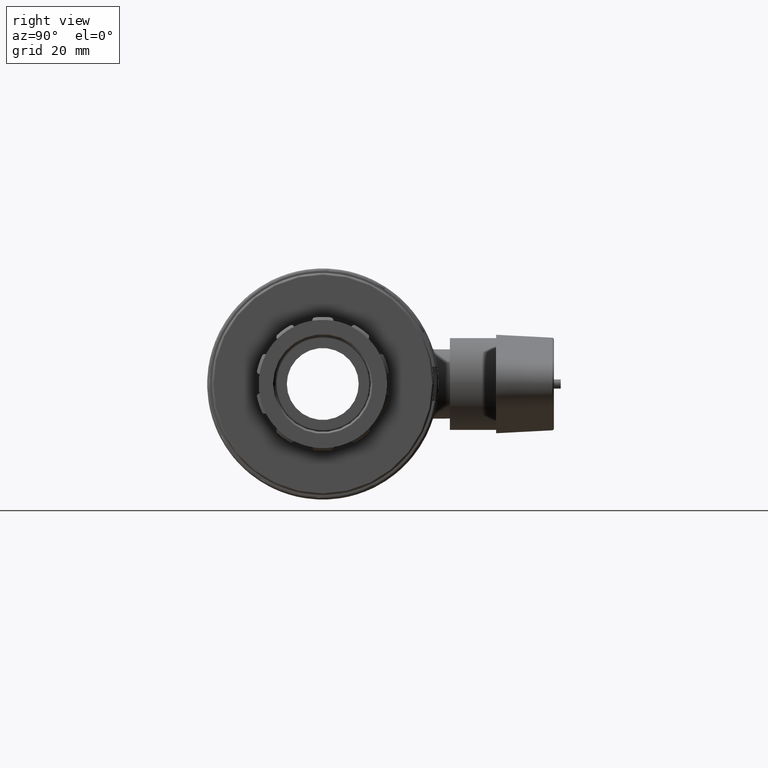
[diagram: clean part render]
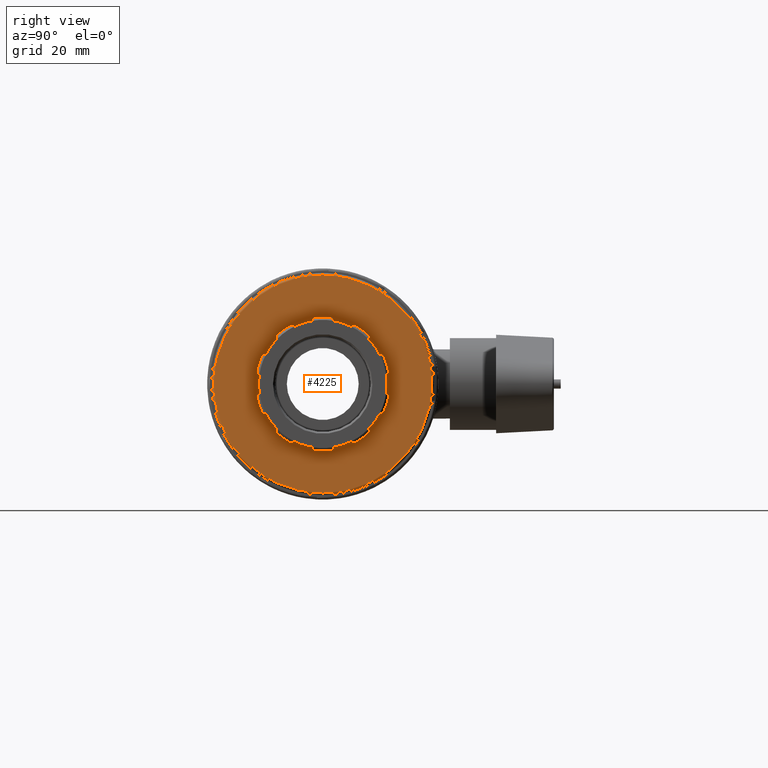
[diagram: same view with one face highlighted and labeled with its STEP entity id]
A machine part, right view. The second image highlights one B-rep face of the part: STEP entity #4225.
In plain terms, the highlighted planar face has unit normal (1, 0, 0).
Its self-contained STEP definition (entity closure, byte-faithful):
#92=FACE_BOUND('',#840,.T.);
#201=PLANE('',#4714);
#573=FACE_OUTER_BOUND('',#839,.T.);
#839=EDGE_LOOP('',(#3801));
#840=EDGE_LOOP('',(#3802,#3803,#3804,#3805,#3806,#3807,#3808,#3809,#3810,
#3811,#3812,#3813,#3814,#3815,#3816,#3817,#3818,#3819,#3820,#3821,#3822,
#3823,#3824,#3825,#3826,#3827,#3828,#3829,#3830,#3831,#3832,#3833,#3834,
#3835,#3836,#3837,#3838,#3839,#3840,#3841));
#1438=CIRCLE('',#4387,0.55893);
#1441=CIRCLE('',#4392,0.558930000000001);
#1444=CIRCLE('',#4397,0.558930000000001);
#1445=CIRCLE('',#4399,0.558929999999999);
#1448=CIRCLE('',#4404,0.558929999999999);
#1449=CIRCLE('',#4406,0.558930000000001);
#1452=CIRCLE('',#4411,0.558930000000001);
#1453=CIRCLE('',#4413,0.55893);
#1456=CIRCLE('',#4418,0.558929999999999);
#1457=CIRCLE('',#4420,0.558929999999999);
#1460=CIRCLE('',#4425,0.55893);
#1461=CIRCLE('',#4427,0.558929999999999);
#1464=CIRCLE('',#4432,0.558930000000001);
#1465=CIRCLE('',#4434,0.558929999999999);
#1468=CIRCLE('',#4439,0.558929999999999);
#1469=CIRCLE('',#4441,0.558930000000001);
#1472=CIRCLE('',#4446,0.558930000000001);
#1473=CIRCLE('',#4448,0.55893);
#1474=CIRCLE('',#4450,13.0417);
#1477=CIRCLE('',#4454,12.48277);
#1479=CIRCLE('',#4457,12.48277);
#1481=CIRCLE('',#4460,12.48277);
#1483=CIRCLE('',#4463,12.48277);
#1485=CIRCLE('',#4466,12.48277);
#1487=CIRCLE('',#4469,12.48277);
#1489=CIRCLE('',#4472,12.48277);
#1491=CIRCLE('',#4475,12.48277);
#1493=CIRCLE('',#4478,12.48277);
#1495=CIRCLE('',#4482,13.0417);
#1496=CIRCLE('',#4484,13.0417);
#1497=CIRCLE('',#4486,13.0417);
#1498=CIRCLE('',#4488,13.0417);
#1499=CIRCLE('',#4490,13.0417);
#1500=CIRCLE('',#4492,13.0417);
#1501=CIRCLE('',#4494,13.0417);
#1502=CIRCLE('',#4496,13.0417);
#1503=CIRCLE('',#4498,13.0417);
#1531=CIRCLE('',#4552,0.558929999999999);
#1532=CIRCLE('',#4554,0.558929999999999);
#1534=CIRCLE('',#4557,12.48277);
#1611=CIRCLE('',#4712,21.22738);
#1762=VERTEX_POINT('',#7142);
#1763=VERTEX_POINT('',#7144);
#1766=VERTEX_POINT('',#7165);
#1767=VERTEX_POINT('',#7166);
#1772=VERTEX_POINT('',#7202);
#1773=VERTEX_POINT('',#7204);
#1774=VERTEX_POINT('',#7208);
#1775=VERTEX_POINT('',#7209);
#1780=VERTEX_POINT('',#7245);
#1781=VERTEX_POINT('',#7247);
#1782=VERTEX_POINT('',#7251);
#1783=VERTEX_POINT('',#7252);
#1788=VERTEX_POINT('',#7288);
#1789=VERTEX_POINT('',#7290);
#1790=VERTEX_POINT('',#7294);
#1791=VERTEX_POINT('',#7295);
#1796=VERTEX_POINT('',#7331);
#1797=VERTEX_POINT('',#7333);
#1798=VERTEX_POINT('',#7337);
#1799=VERTEX_POINT('',#7338);
#1804=VERTEX_POINT('',#7374);
#1805=VERTEX_POINT('',#7376);
#1806=VERTEX_POINT('',#7380);
#1807=VERTEX_POINT('',#7381);
#1812=VERTEX_POINT('',#7417);
#1813=VERTEX_POINT('',#7419);
#1814=VERTEX_POINT('',#7423);
#1815=VERTEX_POINT('',#7424);
#1820=VERTEX_POINT('',#7460);
#1821=VERTEX_POINT('',#7462);
#1822=VERTEX_POINT('',#7466);
#1823=VERTEX_POINT('',#7467);
#1828=VERTEX_POINT('',#7503);
#1829=VERTEX_POINT('',#7505);
#1830=VERTEX_POINT('',#7509);
#1831=VERTEX_POINT('',#7510);
#1834=VERTEX_POINT('',#7529);
#1837=VERTEX_POINT('',#7591);
#1873=VERTEX_POINT('',#7712);
#1874=VERTEX_POINT('',#7716);
#2024=VERTEX_POINT('',#8635);
#2247=EDGE_CURVE('',#1763,#1762,#1438,.T.);
#2252=EDGE_CURVE('',#1766,#1767,#1441,.F.);
#2260=EDGE_CURVE('',#1773,#1772,#1444,.T.);
#2262=EDGE_CURVE('',#1774,#1775,#1445,.F.);
#2270=EDGE_CURVE('',#1781,#1780,#1448,.T.);
#2272=EDGE_CURVE('',#1782,#1783,#1449,.F.);
#2280=EDGE_CURVE('',#1789,#1788,#1452,.T.);
#2282=EDGE_CURVE('',#1790,#1791,#1453,.F.);
#2290=EDGE_CURVE('',#1797,#1796,#1456,.T.);
#2292=EDGE_CURVE('',#1798,#1799,#1457,.F.);
#2300=EDGE_CURVE('',#1805,#1804,#1460,.T.);
#2302=EDGE_CURVE('',#1806,#1807,#1461,.F.);
#2310=EDGE_CURVE('',#1813,#1812,#1464,.T.);
#2312=EDGE_CURVE('',#1814,#1815,#1465,.F.);
#2320=EDGE_CURVE('',#1821,#1820,#1468,.T.);
#2322=EDGE_CURVE('',#1822,#1823,#1469,.F.);
#2330=EDGE_CURVE('',#1829,#1828,#1472,.T.);
#2332=EDGE_CURVE('',#1830,#1831,#1473,.F.);
#2336=EDGE_CURVE('',#1834,#1831,#1474,.T.);
#2340=EDGE_CURVE('',#1763,#1766,#1477,.T.);
#2342=EDGE_CURVE('',#1773,#1774,#1479,.T.);
#2344=EDGE_CURVE('',#1781,#1782,#1481,.T.);
#2346=EDGE_CURVE('',#1789,#1790,#1483,.T.);
#2348=EDGE_CURVE('',#1797,#1798,#1485,.T.);
#2350=EDGE_CURVE('',#1805,#1806,#1487,.T.);
#2352=EDGE_CURVE('',#1813,#1814,#1489,.T.);
#2354=EDGE_CURVE('',#1821,#1822,#1491,.T.);
#2356=EDGE_CURVE('',#1829,#1830,#1493,.T.);
#2359=EDGE_CURVE('',#1828,#1823,#1495,.T.);
#2360=EDGE_CURVE('',#1820,#1815,#1496,.T.);
#2361=EDGE_CURVE('',#1812,#1807,#1497,.T.);
#2362=EDGE_CURVE('',#1804,#1799,#1498,.T.);
#2363=EDGE_CURVE('',#1796,#1791,#1499,.T.);
#2364=EDGE_CURVE('',#1788,#1783,#1500,.T.);
#2365=EDGE_CURVE('',#1780,#1775,#1501,.T.);
#2367=EDGE_CURVE('',#1762,#1837,#1502,.T.);
#2368=EDGE_CURVE('',#1772,#1767,#1503,.T.);
#2424=EDGE_CURVE('',#1873,#1834,#1531,.T.);
#2426=EDGE_CURVE('',#1874,#1837,#1532,.F.);
#2429=EDGE_CURVE('',#1873,#1874,#1534,.T.);
#2651=EDGE_CURVE('',#2024,#2024,#1611,.T.);
#3801=ORIENTED_EDGE('',*,*,#2651,.F.);
#3802=ORIENTED_EDGE('',*,*,#2336,.T.);
#3803=ORIENTED_EDGE('',*,*,#2332,.F.);
#3804=ORIENTED_EDGE('',*,*,#2356,.F.);
#3805=ORIENTED_EDGE('',*,*,#2330,.T.);
#3806=ORIENTED_EDGE('',*,*,#2359,.T.);
#3807=ORIENTED_EDGE('',*,*,#2322,.F.);
#3808=ORIENTED_EDGE('',*,*,#2354,.F.);
#3809=ORIENTED_EDGE('',*,*,#2320,.T.);
#3810=ORIENTED_EDGE('',*,*,#2360,.T.);
#3811=ORIENTED_EDGE('',*,*,#2312,.F.);
#3812=ORIENTED_EDGE('',*,*,#2352,.F.);
#3813=ORIENTED_EDGE('',*,*,#2310,.T.);
#3814=ORIENTED_EDGE('',*,*,#2361,.T.);
#3815=ORIENTED_EDGE('',*,*,#2302,.F.);
#3816=ORIENTED_EDGE('',*,*,#2350,.F.);
#3817=ORIENTED_EDGE('',*,*,#2300,.T.);
#3818=ORIENTED_EDGE('',*,*,#2362,.T.);
#3819=ORIENTED_EDGE('',*,*,#2292,.F.);
#3820=ORIENTED_EDGE('',*,*,#2348,.F.);
#3821=ORIENTED_EDGE('',*,*,#2290,.T.);
#3822=ORIENTED_EDGE('',*,*,#2363,.T.);
#3823=ORIENTED_EDGE('',*,*,#2282,.F.);
#3824=ORIENTED_EDGE('',*,*,#2346,.F.);
#3825=ORIENTED_EDGE('',*,*,#2280,.T.);
#3826=ORIENTED_EDGE('',*,*,#2364,.T.);
#3827=ORIENTED_EDGE('',*,*,#2272,.F.);
#3828=ORIENTED_EDGE('',*,*,#2344,.F.);
#3829=ORIENTED_EDGE('',*,*,#2270,.T.);
#3830=ORIENTED_EDGE('',*,*,#2365,.T.);
#3831=ORIENTED_EDGE('',*,*,#2262,.F.);
#3832=ORIENTED_EDGE('',*,*,#2342,.F.);
#3833=ORIENTED_EDGE('',*,*,#2260,.T.);
#3834=ORIENTED_EDGE('',*,*,#2368,.T.);
#3835=ORIENTED_EDGE('',*,*,#2252,.F.);
#3836=ORIENTED_EDGE('',*,*,#2340,.F.);
#3837=ORIENTED_EDGE('',*,*,#2247,.T.);
#3838=ORIENTED_EDGE('',*,*,#2367,.T.);
#3839=ORIENTED_EDGE('',*,*,#2426,.F.);
#3840=ORIENTED_EDGE('',*,*,#2429,.F.);
#3841=ORIENTED_EDGE('',*,*,#2424,.T.);
#4225=ADVANCED_FACE('',(#573,#92),#201,.T.);
#4387=AXIS2_PLACEMENT_3D('',#7145,#5113,#5114);
#4392=AXIS2_PLACEMENT_3D('',#7167,#5124,#5125);
#4397=AXIS2_PLACEMENT_3D('',#7205,#5137,#5138);
#4399=AXIS2_PLACEMENT_3D('',#7210,#5142,#5143);
#4404=AXIS2_PLACEMENT_3D('',#7248,#5155,#5156);
#4406=AXIS2_PLACEMENT_3D('',#7253,#5160,#5161);
#4411=AXIS2_PLACEMENT_3D('',#7291,#5173,#5174);
#4413=AXIS2_PLACEMENT_3D('',#7296,#5178,#5179);
#4418=AXIS2_PLACEMENT_3D('',#7334,#5191,#5192);
#4420=AXIS2_PLACEMENT_3D('',#7339,#5196,#5197);
#4425=AXIS2_PLACEMENT_3D('',#7377,#5209,#5210);
#4427=AXIS2_PLACEMENT_3D('',#7382,#5214,#5215);
#4432=AXIS2_PLACEMENT_3D('',#7420,#5227,#5228);
#4434=AXIS2_PLACEMENT_3D('',#7425,#5232,#5233);
#4439=AXIS2_PLACEMENT_3D('',#7463,#5245,#5246);
#4441=AXIS2_PLACEMENT_3D('',#7468,#5250,#5251);
#4446=AXIS2_PLACEMENT_3D('',#7506,#5263,#5264);
#4448=AXIS2_PLACEMENT_3D('',#7511,#5268,#5269);
#4450=AXIS2_PLACEMENT_3D('',#7530,#5274,#5275);
#4454=AXIS2_PLACEMENT_3D('',#7536,#5283,#5284);
#4457=AXIS2_PLACEMENT_3D('',#7539,#5289,#5290);
#4460=AXIS2_PLACEMENT_3D('',#7542,#5295,#5296);
#4463=AXIS2_PLACEMENT_3D('',#7545,#5301,#5302);
#4466=AXIS2_PLACEMENT_3D('',#7548,#5307,#5308);
#4469=AXIS2_PLACEMENT_3D('',#7551,#5313,#5314);
#4472=AXIS2_PLACEMENT_3D('',#7554,#5319,#5320);
#4475=AXIS2_PLACEMENT_3D('',#7557,#5325,#5326);
#4478=AXIS2_PLACEMENT_3D('',#7560,#5331,#5332);
#4482=AXIS2_PLACEMENT_3D('',#7577,#5339,#5340);
#4484=AXIS2_PLACEMENT_3D('',#7579,#5343,#5344);
#4486=AXIS2_PLACEMENT_3D('',#7581,#5347,#5348);
#4488=AXIS2_PLACEMENT_3D('',#7583,#5351,#5352);
#4490=AXIS2_PLACEMENT_3D('',#7585,#5355,#5356);
#4492=AXIS2_PLACEMENT_3D('',#7587,#5359,#5360);
#4494=AXIS2_PLACEMENT_3D('',#7589,#5363,#5364);
#4496=AXIS2_PLACEMENT_3D('',#7593,#5368,#5369);
#4498=AXIS2_PLACEMENT_3D('',#7595,#5372,#5373);
#4552=AXIS2_PLACEMENT_3D('',#7713,#5508,#5509);
#4554=AXIS2_PLACEMENT_3D('',#7717,#5513,#5514);
#4557=AXIS2_PLACEMENT_3D('',#7721,#5520,#5521);
#4712=AXIS2_PLACEMENT_3D('',#8636,#5926,#5927);
#4714=AXIS2_PLACEMENT_3D('',#8639,#5930,#5931);
#5113=DIRECTION('center_axis',(-1.,-1.09423447351567E-31,0.));
#5114=DIRECTION('ref_axis',(0.,0.907406534943978,0.420253947442453));
#5124=DIRECTION('center_axis',(-1.,-1.09423447351567E-31,0.));
#5125=DIRECTION('ref_axis',(0.,0.680089295318479,0.733129286274402));
#5137=DIRECTION('center_axis',(-1.,-1.09423447351567E-31,0.));
#5138=DIRECTION('ref_axis',(0.,0.487088235052194,0.873352764507984));
#5142=DIRECTION('center_axis',(-1.,-1.09423447351567E-31,0.));
#5143=DIRECTION('ref_axis',(0.,0.119281215109332,0.99286050970015));
#5155=DIRECTION('center_axis',(-1.,-1.09423447351567E-31,0.));
#5156=DIRECTION('ref_axis',(0.,-0.119281215109332,0.99286050970015));
#5160=DIRECTION('center_axis',(-1.,-1.09423447351567E-31,0.));
#5161=DIRECTION('ref_axis',(0.,-0.487088235052194,0.873352764507984));
#5173=DIRECTION('center_axis',(-1.,-1.09423447351567E-31,0.));
#5174=DIRECTION('ref_axis',(0.,-0.680089295318479,0.733129286274402));
#5178=DIRECTION('center_axis',(-1.,-1.09423447351567E-31,0.));
#5179=DIRECTION('ref_axis',(0.,-0.907406534943978,0.420253947442453));
#5191=DIRECTION('center_axis',(-1.,-1.09423447351567E-31,0.));
#5192=DIRECTION('ref_axis',(0.,-0.981126380100932,0.193367593639784));
#5196=DIRECTION('center_axis',(-1.,-1.09423447351567E-31,0.));
#5197=DIRECTION('ref_axis',(0.,-0.981126380100932,-0.193367593639785));
#5209=DIRECTION('center_axis',(-1.,-1.09423447351567E-31,0.));
#5210=DIRECTION('ref_axis',(0.,-0.907406534943978,-0.420253947442453));
#5214=DIRECTION('center_axis',(-1.,-1.09423447351567E-31,0.));
#5215=DIRECTION('ref_axis',(0.,-0.680089295318479,-0.733129286274402));
#5227=DIRECTION('center_axis',(-1.,-1.09423447351567E-31,0.));
#5228=DIRECTION('ref_axis',(0.,-0.487088235052194,-0.873352764507984));
#5232=DIRECTION('center_axis',(-1.,-1.09423447351567E-31,0.));
#5233=DIRECTION('ref_axis',(0.,-0.119281215109332,-0.99286050970015));
#5245=DIRECTION('center_axis',(-1.,-1.09423447351567E-31,0.));
#5246=DIRECTION('ref_axis',(0.,0.119281215109332,-0.99286050970015));
#5250=DIRECTION('center_axis',(-1.,-1.09423447351567E-31,0.));
#5251=DIRECTION('ref_axis',(0.,0.487088235052194,-0.873352764507984));
#5263=DIRECTION('center_axis',(-1.,-1.09423447351567E-31,0.));
#5264=DIRECTION('ref_axis',(0.,0.680089295318479,-0.733129286274402));
#5268=DIRECTION('center_axis',(-1.,-1.09423447351567E-31,0.));
#5269=DIRECTION('ref_axis',(0.,0.907406534943978,-0.420253947442453));
#5274=DIRECTION('center_axis',(-1.,-1.09423447351567E-31,0.));
#5275=DIRECTION('ref_axis',(0.,0.,1.));
#5283=DIRECTION('center_axis',(1.,8.85254284905103E-32,6.43174886082532E-32));
#5284=DIRECTION('ref_axis',(0.,-0.587785252292473,0.809016994374947));
#5289=DIRECTION('center_axis',(1.,3.38137048147266E-32,1.04067882639188E-31));
#5290=DIRECTION('ref_axis',(0.,-0.951056516295154,0.309016994374947));
#5295=DIRECTION('center_axis',(1.,-3.38137048147267E-32,1.04067882639188E-31));
#5296=DIRECTION('ref_axis',(0.,-0.951056516295154,-0.309016994374948));
#5301=DIRECTION('center_axis',(1.,-8.85254284905103E-32,6.43174886082532E-32));
#5302=DIRECTION('ref_axis',(0.,-0.587785252292473,-0.809016994374948));
#5307=DIRECTION('center_axis',(1.,-1.09423447351567E-31,-1.09476442525376E-47));
#5308=DIRECTION('ref_axis',(0.,1.7788087493804E-16,-1.));
#5313=DIRECTION('center_axis',(1.,-8.85254284905103E-32,-6.43174886082532E-32));
#5314=DIRECTION('ref_axis',(0.,0.587785252292473,-0.809016994374947));
#5319=DIRECTION('center_axis',(1.,-3.38137048147266E-32,-1.04067882639188E-31));
#5320=DIRECTION('ref_axis',(0.,0.951056516295154,-0.309016994374947));
#5325=DIRECTION('center_axis',(1.,3.38137048147266E-32,-1.04067882639188E-31));
#5326=DIRECTION('ref_axis',(0.,0.951056516295154,0.309016994374948));
#5331=DIRECTION('center_axis',(1.,8.85254284905103E-32,-6.43174886082532E-32));
#5332=DIRECTION('ref_axis',(0.,0.587785252292473,0.809016994374948));
#5339=DIRECTION('center_axis',(-1.,-1.09423447351567E-31,0.));
#5340=DIRECTION('ref_axis',(0.,0.,1.));
#5343=DIRECTION('center_axis',(-1.,-1.09423447351567E-31,0.));
#5344=DIRECTION('ref_axis',(0.,0.,1.));
#5347=DIRECTION('center_axis',(-1.,-1.09423447351567E-31,0.));
#5348=DIRECTION('ref_axis',(0.,0.,1.));
#5351=DIRECTION('center_axis',(-1.,-1.09423447351567E-31,0.));
#5352=DIRECTION('ref_axis',(0.,0.,1.));
#5355=DIRECTION('center_axis',(-1.,-1.09423447351567E-31,0.));
#5356=DIRECTION('ref_axis',(0.,0.,1.));
#5359=DIRECTION('center_axis',(-1.,-1.09423447351567E-31,0.));
#5360=DIRECTION('ref_axis',(0.,0.,1.));
#5363=DIRECTION('center_axis',(-1.,-1.09423447351567E-31,0.));
#5364=DIRECTION('ref_axis',(0.,0.,1.));
#5368=DIRECTION('center_axis',(-1.,-1.09423447351567E-31,0.));
#5369=DIRECTION('ref_axis',(0.,0.,1.));
#5372=DIRECTION('center_axis',(-1.,-1.09423447351567E-31,0.));
#5373=DIRECTION('ref_axis',(0.,0.,1.));
#5508=DIRECTION('center_axis',(-1.,-1.09423447351567E-31,0.));
#5509=DIRECTION('ref_axis',(0.,0.981126380100932,-0.193367593639784));
#5513=DIRECTION('center_axis',(-1.,-1.09423447351567E-31,0.));
#5514=DIRECTION('ref_axis',(0.,0.981126380100932,0.193367593639784));
#5520=DIRECTION('center_axis',(1.,1.09423447351567E-31,0.));
#5521=DIRECTION('ref_axis',(0.,0.,1.));
#5926=DIRECTION('center_axis',(-1.,-1.09423447351567E-31,0.));
#5927=DIRECTION('ref_axis',(1.09423447351567E-31,-1.,-1.83697019872103E-16));
#5930=DIRECTION('center_axis',(1.,1.09423447351567E-31,0.));
#5931=DIRECTION('ref_axis',(0.,0.,-1.));
#7142=CARTESIAN_POINT('',(26.8333333333333,11.8341238067789,5.48082590636024));
#7144=CARTESIAN_POINT('',(26.8333333333333,11.0807587049077,5.74772419280119));
#7145=CARTESIAN_POINT('Origin',(26.8333333333333,11.3269470722026,5.24593336751623));
#7165=CARTESIAN_POINT('',(26.8333333333333,8.89055329781548,8.76228331724112));
#7166=CARTESIAN_POINT('',(26.8333333333333,8.869520562755,9.56125221280487));
#7167=CARTESIAN_POINT('Origin',(26.8333333333333,8.48939825292265,9.15148426082752));
#7202=CARTESIAN_POINT('',(26.8333333333333,6.35245863508018,11.3900047488838));
#7204=CARTESIAN_POINT('',(26.8333333333333,5.58609458806526,11.1631131019124));
#7205=CARTESIAN_POINT('Origin',(26.8333333333333,6.08021040786246,10.9018616882173));
#7208=CARTESIAN_POINT('',(26.8333333333333,2.04226779704626,12.3145722263523));
#7209=CARTESIAN_POINT('',(26.8333333333333,1.55562982309137,12.9485889093564));
#7210=CARTESIAN_POINT('Origin',(26.8333333333333,1.48895997353031,12.3936493846697));
#7245=CARTESIAN_POINT('',(26.8333333333333,-1.55562982309138,12.9485889093564));
#7247=CARTESIAN_POINT('',(26.8333333333333,-2.04226779704626,12.3145722263523));
#7248=CARTESIAN_POINT('Origin',(26.8333333333333,-1.48895997353032,12.3936493846697));
#7251=CARTESIAN_POINT('',(26.8333333333333,-5.58609458806527,11.1631131019124));
#7252=CARTESIAN_POINT('',(26.8333333333333,-6.35245863508018,11.3900047488838));
#7253=CARTESIAN_POINT('Origin',(26.8333333333333,-6.08021040786246,10.9018616882173));
#7288=CARTESIAN_POINT('',(26.8333333333333,-8.86952056275501,9.56125221280487));
#7290=CARTESIAN_POINT('',(26.8333333333333,-8.89055329781548,8.76228331724112));
#7291=CARTESIAN_POINT('Origin',(26.8333333333333,-8.48939825292265,9.15148426082751));
#7294=CARTESIAN_POINT('',(26.8333333333333,-11.0807587049077,5.74772419280119));
#7295=CARTESIAN_POINT('',(26.8333333333333,-11.8341238067789,5.48082590636023));
#7296=CARTESIAN_POINT('Origin',(26.8333333333333,-11.3269470722026,5.24593336751622));
#7331=CARTESIAN_POINT('',(26.8333333333333,-12.7955559113623,2.52184214597197));
#7333=CARTESIAN_POINT('',(26.8333333333333,-12.3429496176117,1.8631));
#7334=CARTESIAN_POINT('Origin',(26.8333333333333,-12.2471749437325,2.41376319685889));
#7337=CARTESIAN_POINT('',(26.8333333333333,-12.3429496176117,-1.8631));
#7338=CARTESIAN_POINT('',(26.8333333333333,-12.7955559113623,-2.52184214597198));
#7339=CARTESIAN_POINT('Origin',(26.8333333333333,-12.2471749437325,-2.41376319685889));
#7374=CARTESIAN_POINT('',(26.8333333333333,-11.8341238067789,-5.48082590636024));
#7376=CARTESIAN_POINT('',(26.8333333333333,-11.0807587049077,-5.74772419280119));
#7377=CARTESIAN_POINT('Origin',(26.8333333333333,-11.3269470722026,-5.24593336751623));
#7380=CARTESIAN_POINT('',(26.8333333333333,-8.89055329781548,-8.76228331724112));
#7381=CARTESIAN_POINT('',(26.8333333333333,-8.869520562755,-9.56125221280487));
#7382=CARTESIAN_POINT('Origin',(26.8333333333333,-8.48939825292265,-9.15148426082752));
#7417=CARTESIAN_POINT('',(26.8333333333333,-6.35245863508018,-11.3900047488838));
#7419=CARTESIAN_POINT('',(26.8333333333333,-5.58609458806526,-11.1631131019124));
#7420=CARTESIAN_POINT('Origin',(26.8333333333333,-6.08021040786246,-10.9018616882173));
#7423=CARTESIAN_POINT('',(26.8333333333333,-2.04226779704626,-12.3145722263523));
#7424=CARTESIAN_POINT('',(26.8333333333333,-1.55562982309137,-12.9485889093564));
#7425=CARTESIAN_POINT('Origin',(26.8333333333333,-1.48895997353032,-12.3936493846697));
#7460=CARTESIAN_POINT('',(26.8333333333333,1.55562982309137,-12.9485889093564));
#7462=CARTESIAN_POINT('',(26.8333333333333,2.04226779704626,-12.3145722263523));
#7463=CARTESIAN_POINT('Origin',(26.8333333333333,1.48895997353032,-12.3936493846697));
#7466=CARTESIAN_POINT('',(26.8333333333333,5.58609458806527,-11.1631131019124));
#7467=CARTESIAN_POINT('',(26.8333333333333,6.35245863508018,-11.3900047488838));
#7468=CARTESIAN_POINT('Origin',(26.8333333333333,6.08021040786246,-10.9018616882173));
#7503=CARTESIAN_POINT('',(26.8333333333333,8.86952056275501,-9.56125221280487));
#7505=CARTESIAN_POINT('',(26.8333333333333,8.89055329781548,-8.76228331724112));
#7506=CARTESIAN_POINT('Origin',(26.8333333333333,8.48939825292265,-9.15148426082751));
#7509=CARTESIAN_POINT('',(26.8333333333333,11.0807587049077,-5.74772419280119));
#7510=CARTESIAN_POINT('',(26.8333333333333,11.8341238067789,-5.48082590636023));
#7511=CARTESIAN_POINT('Origin',(26.8333333333333,11.3269470722026,-5.24593336751622));
#7529=CARTESIAN_POINT('',(26.8333333333333,12.7955559113623,-2.52184214597198));
#7530=CARTESIAN_POINT('Origin',(26.8333333333333,-1.14894619719146E-30,
0.));
#7536=CARTESIAN_POINT('Origin',(26.8333333333333,-1.09714599020549E-31,
3.37666815193329E-31));
#7539=CARTESIAN_POINT('Origin',(26.8333333333333,-3.96951148318414E-31,
5.46356383855736E-31));
#7542=CARTESIAN_POINT('Origin',(26.8333333333333,-7.51995048873044E-31,
5.46356383855736E-31));
#7545=CARTESIAN_POINT('Origin',(26.8333333333333,-1.03923159817091E-30,
3.37666815193329E-31));
#7548=CARTESIAN_POINT('Origin',(26.8333333333333,-1.14894619719146E-30,
-2.18952885050753E-46));
#7551=CARTESIAN_POINT('Origin',(26.8333333333333,-1.03923159817091E-30,
-3.37666815193329E-31));
#7554=CARTESIAN_POINT('Origin',(26.8333333333333,-7.51995048873043E-31,
-5.46356383855736E-31));
#7557=CARTESIAN_POINT('Origin',(26.8333333333333,-3.96951148318414E-31,
-5.46356383855736E-31));
#7560=CARTESIAN_POINT('Origin',(26.8333333333333,-1.09714599020549E-31,
-3.37666815193329E-31));
#7577=CARTESIAN_POINT('Origin',(26.8333333333333,-1.14894619719146E-30,
0.));
#7579=CARTESIAN_POINT('Origin',(26.8333333333333,-1.14894619719146E-30,
0.));
#7581=CARTESIAN_POINT('Origin',(26.8333333333333,-1.14894619719146E-30,
0.));
#7583=CARTESIAN_POINT('Origin',(26.8333333333333,-1.14894619719146E-30,
0.));
#7585=CARTESIAN_POINT('Origin',(26.8333333333333,-1.14894619719146E-30,
0.));
#7587=CARTESIAN_POINT('Origin',(26.8333333333333,-1.14894619719146E-30,
0.));
#7589=CARTESIAN_POINT('Origin',(26.8333333333333,-1.14894619719146E-30,
0.));
#7591=CARTESIAN_POINT('',(26.8333333333333,12.7955559113623,2.52184214597198));
#7593=CARTESIAN_POINT('Origin',(26.8333333333333,-1.14894619719146E-30,
0.));
#7595=CARTESIAN_POINT('Origin',(26.8333333333333,-1.14894619719146E-30,
0.));
#7712=CARTESIAN_POINT('',(26.8333333333333,12.3429496176117,-1.8631));
#7713=CARTESIAN_POINT('Origin',(26.8333333333333,12.2471749437325,-2.41376319685889));
#7716=CARTESIAN_POINT('',(26.8333333333333,12.3429496176117,1.8631));
#7717=CARTESIAN_POINT('Origin',(26.8333333333333,12.2471749437325,2.41376319685889));
#7721=CARTESIAN_POINT('Origin',(26.8333333333333,8.21073318940323E-47,0.));
#8635=CARTESIAN_POINT('',(26.8333333333333,21.22738,1.29980214856423E-15));
#8636=CARTESIAN_POINT('Origin',(26.8333333333333,-1.14894619719146E-30,
0.));
#8639=CARTESIAN_POINT('Origin',(26.8333333333333,21.6,0.));